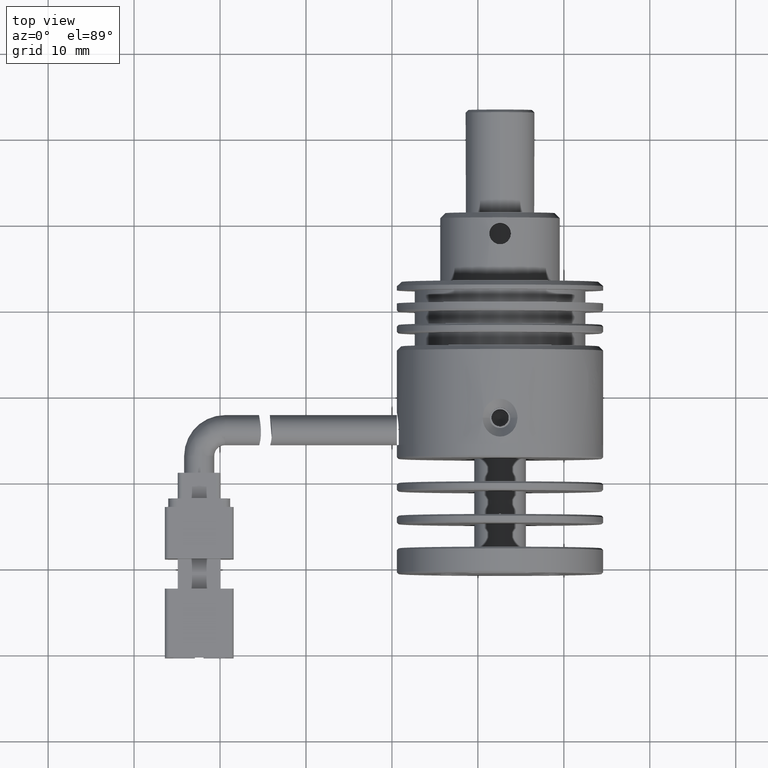
[diagram: clean part render]
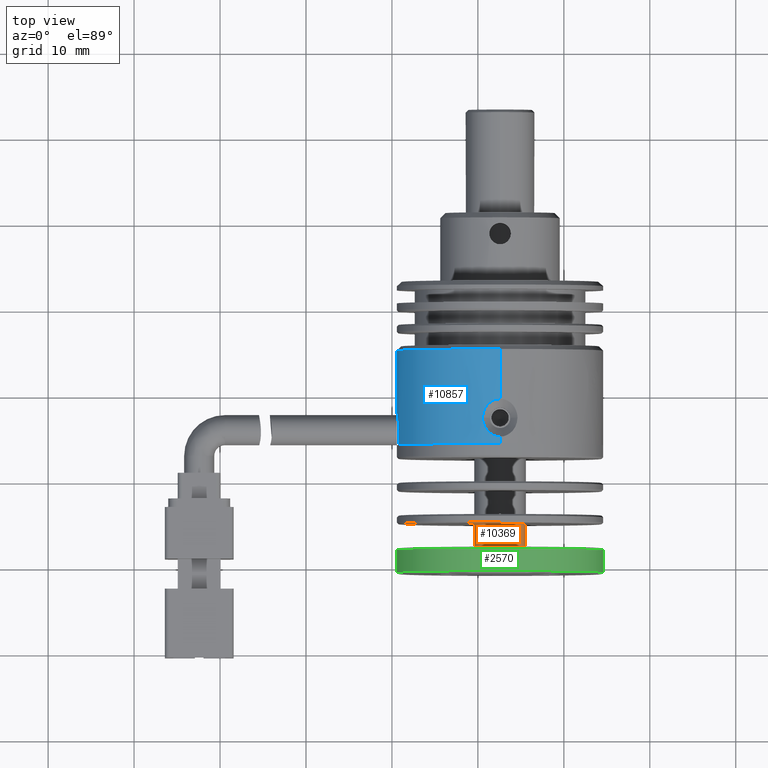
[diagram: same view with three faces highlighted in distinct colors, each labeled with its STEP entity id]
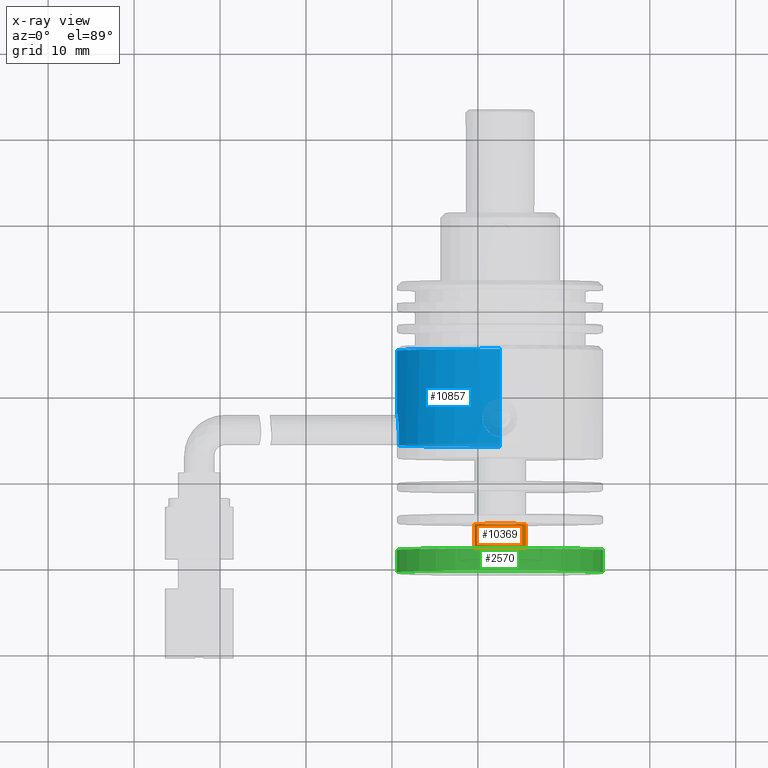
[diagram: x-ray of the same camera — body ghosted, the three highlighted faces saturated]
A machine part, top view with three faces highlighted in distinct colors.
The next image is the same camera in x-ray (body ghosted, the three faces saturated) — at least one of them is partly hidden behind the body in this view.
Their STEP definitions:

[orange] entity #10369 — the highlighted cylindrical surface (edge-blend (fillet) strip) has radius 3 mm, axis along (0, -1, 0).
#7 = AXIS2_PLACEMENT_3D ( 'NONE', #19498, #4403, #19305 ) ;
#322 = EDGE_CURVE ( 'NONE', #12363, #17632, #8459, .T. ) ;
#596 = ORIENTED_EDGE ( 'NONE', *, *, #1297, .T. ) ;
#1018 = EDGE_CURVE ( 'NONE', #16840, #17632, #2922, .T. ) ;
#1145 = DIRECTION ( 'NONE',  ( -8.260587980841940012E-17, -1.000000000000000000, 0.000000000000000000 ) ) ;
#1297 = EDGE_CURVE ( 'NONE', #8063, #12363, #7175, .T. ) ;
#2922 = LINE ( 'NONE', #7198, #17113 ) ;
#4403 = DIRECTION ( 'NONE',  ( 0.000000000000000000, 1.000000000000000000, 0.000000000000000000 ) ) ;
#5331 = ORIENTED_EDGE ( 'NONE', *, *, #322, .T. ) ;
#5690 = CIRCLE ( 'NONE', #7, 3.000000000000000000 ) ;
#5781 = CARTESIAN_POINT ( 'NONE',  ( -0.4250662123641815171, -30.71493551001259803, -9.174035921659379866 ) ) ;
#6992 = FACE_OUTER_BOUND ( 'NONE', #12270, .T. ) ;
#7081 = DIRECTION ( 'NONE',  ( -8.260587980841940012E-17, -1.000000000000000000, 0.000000000000000000 ) ) ;
#7175 = LINE ( 'NONE', #5781, #14656 ) ;
#7198 = CARTESIAN_POINT ( 'NONE',  ( 5.574933787635820259, -30.71493551001259803, -9.174035921659379866 ) ) ;
#8063 = VERTEX_POINT ( 'NONE', #8755 ) ;
#8459 = CIRCLE ( 'NONE', #13851, 3.000000000000000000 ) ;
#8755 = CARTESIAN_POINT ( 'NONE',  ( -0.4250662123641810175, -24.91493551001259732, -9.174035921659379866 ) ) ;
#9761 = CYLINDRICAL_SURFACE ( 'NONE', #12819, 3.000000000000000000 ) ;
#10057 = DIRECTION ( 'NONE',  ( -1.000000000000000000, 0.000000000000000000, 0.000000000000000000 ) ) ;
#10369 = ADVANCED_FACE ( 'NONE', ( #6992 ), #9761, .T. ) ;
#10632 = CARTESIAN_POINT ( 'NONE',  ( -0.4250662123641810175, -27.71493551001259803, -9.174035921659379866 ) ) ;
#10896 = DIRECTION ( 'NONE',  ( -1.000000000000000000, 0.000000000000000000, 0.000000000000000000 ) ) ;
#11354 = EDGE_CURVE ( 'NONE', #8063, #16840, #5690, .T. ) ;
#12270 = EDGE_LOOP ( 'NONE', ( #12853, #16775, #596, #5331 ) ) ;
#12328 = CARTESIAN_POINT ( 'NONE',  ( 5.574933787635820259, -27.71493551001259803, -9.174035921659379866 ) ) ;
#12363 = VERTEX_POINT ( 'NONE', #10632 ) ;
#12370 = DIRECTION ( 'NONE',  ( 0.000000000000000000, 1.000000000000000000, 0.000000000000000000 ) ) ;
#12819 = AXIS2_PLACEMENT_3D ( 'NONE', #17626, #19216, #10057 ) ;
#12853 = ORIENTED_EDGE ( 'NONE', *, *, #1018, .F. ) ;
#13851 = AXIS2_PLACEMENT_3D ( 'NONE', #15781, #12370, #10896 ) ;
#14656 = VECTOR ( 'NONE', #7081, 1000.000000000000000 ) ;
#15781 = CARTESIAN_POINT ( 'NONE',  ( 2.574933787635819815, -27.71493551001259803, -9.174035921659379866 ) ) ;
#16775 = ORIENTED_EDGE ( 'NONE', *, *, #11354, .F. ) ;
#16840 = VERTEX_POINT ( 'NONE', #17884 ) ;
#17113 = VECTOR ( 'NONE', #1145, 1000.000000000000000 ) ;
#17626 = CARTESIAN_POINT ( 'NONE',  ( 2.574933787635819815, -30.71493551001259803, -9.174035921659379866 ) ) ;
#17632 = VERTEX_POINT ( 'NONE', #12328 ) ;
#17884 = CARTESIAN_POINT ( 'NONE',  ( 5.574933787635820259, -24.91493551001259732, -9.174035921659379866 ) ) ;
#19216 = DIRECTION ( 'NONE',  ( 0.000000000000000000, -1.000000000000000000, 0.000000000000000000 ) ) ;
#19305 = DIRECTION ( 'NONE',  ( -1.000000000000000000, 0.000000000000000000, 0.000000000000000000 ) ) ;
#19498 = CARTESIAN_POINT ( 'NONE',  ( 2.574933787635819815, -24.91493551001259732, -9.174035921659379866 ) ) ;

[blue] entity #10857 — the highlighted cylindrical surface (partial cylindrical patch) has radius 12 mm, axis along (0, -1, 0).
#152 = DIRECTION ( 'NONE',  ( 0.000000000000000000, -1.000000000000000000, 0.000000000000000000 ) ) ;
#250 = CARTESIAN_POINT ( 'NONE',  ( -7.955894272396198730, -14.89878694417706484, -14.92905361945406462 ) ) ;
#328 = EDGE_CURVE ( 'NONE', #1211, #1382, #16970, .T. ) ;
#333 = CARTESIAN_POINT ( 'NONE',  ( -9.425060759568792079, -11.91496925578588240, -9.466087723692901079 ) ) ;
#348 = CARTESIAN_POINT ( 'NONE',  ( 2.574933787635819815, -15.71493551001260158, -9.174035921659379866 ) ) ;
#373 = B_SPLINE_CURVE_WITH_KNOTS ( 'NONE', 3,
 ( #18196, #16191, #1521, #1215, #19297, #7461, #7169, #13499, #5970, #12013, #14704, #10229, #16298, #7263, #2694, #1312, #8730, #19388, #19488, #16402, #11918, #4490, #11816, #17891, #4285, #14896, #7365, #16617 ),
 .UNSPECIFIED., .F., .F.,
 ( 4, 2, 2, 2, 2, 2, 2, 2, 2, 2, 2, 2, 2, 4 ),
 ( 0.000000000000000000, 0.06250000000000083267, 0.1250000000000016653, 0.2500000000000028866, 0.2812500000000033307, 0.3125000000000037748, 0.3750000000000029976, 0.4375000000000022204, 0.5000000000000021094, 0.6250000000000018874, 0.7500000000000015543, 0.8125000000000013323, 0.8750000000000012212, 1.000000000000000000 ),
 .UNSPECIFIED. ) ;
#392 = ORIENTED_EDGE ( 'NONE', *, *, #8781, .T. ) ;
#437 = CARTESIAN_POINT ( 'NONE',  ( -8.594861046436205854, -13.79316622266274805, -13.56099827411221703 ) ) ;
#610 = LINE ( 'NONE', #9424, #19211 ) ;
#728 = DIRECTION ( 'NONE',  ( 0.000000000000000000, -1.000000000000000000, 0.000000000000000000 ) ) ;
#825 = CARTESIAN_POINT ( 'NONE',  ( -9.213492510803954261, -13.91929407652016160, -6.930599849896031728 ) ) ;
#848 = CARTESIAN_POINT ( 'NONE',  ( 2.096022388241594037, -14.85369483475732899, 2.816593880538836636 ) ) ;
#856 = ORIENTED_EDGE ( 'NONE', *, *, #6605, .T. ) ;
#1211 = VERTEX_POINT ( 'NONE', #12824 ) ;
#1215 = CARTESIAN_POINT ( 'NONE',  ( -6.693093116265878884, -12.16550311873377233, -16.79665169080799103 ) ) ;
#1312 = CARTESIAN_POINT ( 'NONE',  ( -7.674471767945457934, -10.53108407583808059, -15.41649169556206900 ) ) ;
#1382 = VERTEX_POINT ( 'NONE', #8531 ) ;
#1521 = CARTESIAN_POINT ( 'NONE',  ( -6.662057355899383637, -12.43657835257956989, -16.83423098900399495 ) ) ;
#1780 = ORIENTED_EDGE ( 'NONE', *, *, #10016, .T. ) ;
#1834 = CARTESIAN_POINT ( 'NONE',  ( -9.308188142008770427, -12.62674720150389795, -10.84815353852922826 ) ) ;
#1924 = CARTESIAN_POINT ( 'NONE',  ( -8.453182517590271061, -14.28828603164582667, -13.90508213202092058 ) ) ;
#2019 = CARTESIAN_POINT ( 'NONE',  ( -8.302962392191373553, -14.60143809722399943, -14.24196620499715138 ) ) ;
#2080 = DIRECTION ( 'NONE',  ( 0.000000000000000000, 0.000000000000000000, -1.000000000000000000 ) ) ;
#2112 = CARTESIAN_POINT ( 'NONE',  ( -9.256237866753636467, -13.09297815067737503, -7.167323612594349136 ) ) ;
#2114 = CARTESIAN_POINT ( 'NONE',  ( -6.654267252349984396, -12.99654219394673227, -16.84357620566042968 ) ) ;
#2181 = DIRECTION ( 'NONE',  ( 0.000000000000000000, -1.000000000000000000, 0.000000000000000000 ) ) ;
#2255 = CARTESIAN_POINT ( 'NONE',  ( 2.026255711910619706, -10.59609063980850330, 2.813590590170488515 ) ) ;
#2311 = VERTEX_POINT ( 'NONE', #15430 ) ;
#2617 = CARTESIAN_POINT ( 'NONE',  ( 1.472062192542792802, -14.56077258826209864, 2.775304383431618671 ) ) ;
#2694 = CARTESIAN_POINT ( 'NONE',  ( -7.530075066096340919, -10.59359177348320991, -15.64762568298237788 ) ) ;
#3298 = CARTESIAN_POINT ( 'NONE',  ( 2.574933787635819815, -4.714935510012609576, -9.174035921659379866 ) ) ;
#3302 = CARTESIAN_POINT ( 'NONE',  ( -9.216389900145653513, -13.77719336299539243, -11.40240203098484351 ) ) ;
#3303 = CARTESIAN_POINT ( 'NONE',  ( -8.543709394251106204, -14.02794512524190651, -13.69179350397823569 ) ) ;
#3349 = CARTESIAN_POINT ( 'NONE',  ( 2.574933787635819815, -38.96480397725189704, 2.825964078340615249 ) ) ;
#3405 = VECTOR ( 'NONE', #5006, 1000.000000000000000 ) ;
#3408 = CARTESIAN_POINT ( 'NONE',  ( -6.685817892213274938, -13.26832100679356330, -16.80607822436601140 ) ) ;
#3601 = CARTESIAN_POINT ( 'NONE',  ( -6.954529825999696158, -14.13597040033991981, -16.46772447302986109 ) ) ;
#3654 = CARTESIAN_POINT ( 'NONE',  ( 2.434959630399879060, -10.51493550999719595, 2.825964078340619690 ) ) ;
#3661 = VERTEX_POINT ( 'NONE', #6241 ) ;
#3689 = CARTESIAN_POINT ( 'NONE',  ( -9.376115538596648591, -12.17900215437839506, -8.057217805530338950 ) ) ;
#3829 = LINE ( 'NONE', #9885, #9729 ) ;
#3941 = CARTESIAN_POINT ( 'NONE',  ( 0.6430762808865218005, -12.03373431288128081, 2.669543458704266126 ) ) ;
#4005 = CARTESIAN_POINT ( 'NONE',  ( 2.029562617309307981, -14.83480792122626291, 2.813743795756896038 ) ) ;
#4010 = VERTEX_POINT ( 'NONE', #8695 ) ;
#4036 = CARTESIAN_POINT ( 'NONE',  ( 0.9286518118746019956, -11.40107229499576214, 2.713949923898268946 ) ) ;
#4080 = CARTESIAN_POINT ( 'NONE',  ( -9.422410818888788953, -11.92806868603710235, -8.884990377563864783 ) ) ;
#4224 = CARTESIAN_POINT ( 'NONE',  ( -9.213484501332771970, -14.06493551001259945, -6.930557763907279956 ) ) ;
#4285 = CARTESIAN_POINT ( 'NONE',  ( -8.612399467989444446, -11.76862252416017718, -13.51523074722599027 ) ) ;
#4490 = CARTESIAN_POINT ( 'NONE',  ( -8.506317591973171943, -11.29390061973146331, -13.77994921979212073 ) ) ;
#4736 = ORIENTED_EDGE ( 'NONE', *, *, #18639, .T. ) ;
#4883 = B_SPLINE_CURVE_WITH_KNOTS ( 'NONE', 3,
 ( #9240, #6288, #3302, #13902, #6576, #12618, #8041, #17213, #6479, #9635, #1834, #7865, #12330, #16922, #17016, #9340, #333, #15699, #4080, #11420, #16110, #3689, #9818, #5482, #6675, #16008, #2112, #14306, #11229, #11526, #825, #6966 ),
 .UNSPECIFIED., .F., .F.,
 ( 4, 2, 2, 2, 2, 2, 2, 2, 2, 2, 2, 2, 2, 2, 2, 4 ),
 ( 0.000000000000000000, 0.06250000000000045797, 0.09375000000000033307, 0.1250000000000002220, 0.1874999999999999167, 0.2499999999999996392, 0.3124999999999993339, 0.3749999999999990563, 0.4999999999999987788, 0.5624999999999985567, 0.6249999999999983347, 0.7499999999999990008, 0.8124999999999993339, 0.8749999999999995559, 0.9374999999999997780, 1.000000000000000000 ),
 .UNSPECIFIED. ) ;
#4935 = ORIENTED_EDGE ( 'NONE', *, *, #6337, .T. ) ;
#5001 = CARTESIAN_POINT ( 'NONE',  ( -8.660458563684807487, -13.26436790134293453, -13.38907477882363217 ) ) ;
#5006 = DIRECTION ( 'NONE',  ( 0.000000000000000000, -1.000000000000000000, 0.000000000000000000 ) ) ;
#5088 = CARTESIAN_POINT ( 'NONE',  ( -8.434011058247628867, -14.33769209021656366, -13.94956596884821387 ) ) ;
#5147 = CARTESIAN_POINT ( 'NONE',  ( 1.832271277840390677, -10.66717542570919619, 2.803126939185562883 ) ) ;
#5255 = CARTESIAN_POINT ( 'NONE',  ( 1.896241302772099679, -10.64108618937641815, 2.806932884280202156 ) ) ;
#5408 = CARTESIAN_POINT ( 'NONE',  ( 1.832890731332017520, -14.76291463980479968, 2.803160245685113239 ) ) ;
#5425 = ORIENTED_EDGE ( 'NONE', *, *, #8380, .T. ) ;
#5438 = DIRECTION ( 'NONE',  ( 0.000000000000000000, 1.000000000000000000, 0.000000000000000000 ) ) ;
#5482 = CARTESIAN_POINT ( 'NONE',  ( -9.308164599573723663, -12.62690814907359993, -7.499749364523114359 ) ) ;
#5497 = AXIS2_PLACEMENT_3D ( 'NONE', #3298, #728, #6781 ) ;
#5631 = DIRECTION ( 'NONE',  ( 0.000000000000000000, -1.000000000000000000, 0.000000000000000000 ) ) ;
#5660 = EDGE_LOOP ( 'NONE', ( #17487, #14894, #4935, #392, #5425, #1780, #4736, #14742, #15478, #19420, #17489, #18950 ) ) ;
#5967 = VERTEX_POINT ( 'NONE', #16418 ) ;
#5970 = CARTESIAN_POINT ( 'NONE',  ( -7.065268972709117357, -11.09217892979781084, -16.32029680345939227 ) ) ;
#6031 = VERTEX_POINT ( 'NONE', #19367 ) ;
#6241 = CARTESIAN_POINT ( 'NONE',  ( -9.213484501332771970, -14.06493551001259945, -11.41751407941150021 ) ) ;
#6288 = CARTESIAN_POINT ( 'NONE',  ( -9.213492324046612225, -13.92039798231772707, -11.41747297474433509 ) ) ;
#6297 = AXIS2_PLACEMENT_3D ( 'NONE', #7127, #5631, #11673 ) ;
#6337 = EDGE_CURVE ( 'NONE', #4010, #11216, #6713, .T. ) ;
#6476 = LINE ( 'NONE', #13719, #19144 ) ;
#6479 = CARTESIAN_POINT ( 'NONE',  ( -9.268295494638719489, -12.96850231522942032, -11.10925643756528025 ) ) ;
#6481 = CARTESIAN_POINT ( 'NONE',  ( -8.252952824295109124, -14.67281473078618070, -14.34827459290532126 ) ) ;
#6576 = CARTESIAN_POINT ( 'NONE',  ( -9.228205222392402263, -13.49595041248288396, -11.33884961509288480 ) ) ;
#6579 = CARTESIAN_POINT ( 'NONE',  ( -8.681695344521912716, -12.85532774269461598, -13.33195614480917079 ) ) ;
#6605 = EDGE_CURVE ( 'NONE', #10858, #6031, #6668, .T. ) ;
#6668 = B_SPLINE_CURVE_WITH_KNOTS ( 'NONE', 3,
 ( #18598, #6579, #9243, #5001, #18694, #437, #3303, #1924, #5088, #10849, #9442, #2019, #6481, #11048, #8045, #250, #12713, #11137, #17218, #10946, #7774, #3601, #17112, #15703, #17017, #3408, #2114, #8147 ),
 .UNSPECIFIED., .F., .F.,
 ( 4, 2, 2, 2, 2, 2, 2, 2, 2, 2, 2, 2, 2, 4 ),
 ( 0.000000000000000000, 0.06250000000000051348, 0.1250000000000010270, 0.2500000000000012212, 0.2812500000000013323, 0.3125000000000013878, 0.3750000000000012212, 0.4375000000000011102, 0.5000000000000008882, 0.6250000000000007772, 0.7500000000000005551, 0.8125000000000006661, 0.8750000000000007772, 1.000000000000000000 ),
 .UNSPECIFIED. ) ;
#6675 = CARTESIAN_POINT ( 'NONE',  ( -9.294545518037551801, -12.73263607737968606, -7.406908472809957900 ) ) ;
#6713 = CIRCLE ( 'NONE', #18448, 12.00000000000000178 ) ;
#6781 = DIRECTION ( 'NONE',  ( 0.000000000000000000, 0.000000000000000000, -1.000000000000000000 ) ) ;
#6895 = CARTESIAN_POINT ( 'NONE',  ( 1.648504180264004138, -14.67214926115701168, 2.790295710540666718 ) ) ;
#6909 = VERTEX_POINT ( 'NONE', #14776 ) ;
#6966 = CARTESIAN_POINT ( 'NONE',  ( -9.213484501332771970, -14.06493551001259945, -6.930557763907279956 ) ) ;
#7127 = CARTESIAN_POINT ( 'NONE',  ( 2.574933787635819815, -38.96480397725189704, -9.174035921659379866 ) ) ;
#7169 = CARTESIAN_POINT ( 'NONE',  ( -6.896880637730435915, -11.40192589481244667, -16.54418458163544869 ) ) ;
#7263 = CARTESIAN_POINT ( 'NONE',  ( -7.460419186468075559, -10.63818894139042825, -15.75488427069399222 ) ) ;
#7365 = CARTESIAN_POINT ( 'NONE',  ( -8.681683732527016417, -12.43333097894222483, -13.33198758191794120 ) ) ;
#7461 = CARTESIAN_POINT ( 'NONE',  ( -6.809184472037298264, -11.63670479744083153, -16.65388082684023274 ) ) ;
#7774 = CARTESIAN_POINT ( 'NONE',  ( -7.121615167523180467, -14.44668694536710873, -16.24589679077926974 ) ) ;
#7820 = EDGE_CURVE ( 'NONE', #5967, #2311, #15422, .T. ) ;
#7865 = CARTESIAN_POINT ( 'NONE',  ( -9.335931312383490166, -12.42948708778289735, -10.63778083080720371 ) ) ;
#8006 = EDGE_LOOP ( 'NONE', ( #856, #15195 ) ) ;
#8041 = CARTESIAN_POINT ( 'NONE',  ( -9.240971289631117358, -13.29027812670574349, -11.26813423856585139 ) ) ;
#8045 = CARTESIAN_POINT ( 'NONE',  ( -8.083863826174100708, -14.83627924655192309, -14.68843541387316520 ) ) ;
#8147 = CARTESIAN_POINT ( 'NONE',  ( -6.654224905934100320, -12.71493551001259981, -16.84362716297745166 ) ) ;
#8210 = CARTESIAN_POINT ( 'NONE',  ( -9.213484501332771970, -15.71493551001260158, -6.930557763907279956 ) ) ;
#8265 = EDGE_CURVE ( 'NONE', #15969, #17079, #17325, .T. ) ;
#8380 = EDGE_CURVE ( 'NONE', #13061, #6909, #18959, .T. ) ;
#8487 = CARTESIAN_POINT ( 'NONE',  ( 1.358851824585484147, -10.95465887695283058, 2.764317752106358661 ) ) ;
#8489 = CYLINDRICAL_SURFACE ( 'NONE', #6297, 12.00000000000000178 ) ;
#8531 = CARTESIAN_POINT ( 'NONE',  ( 2.574933787635819815, -15.71493551001260158, 2.825964078340615249 ) ) ;
#8540 = CARTESIAN_POINT ( 'NONE',  ( 1.708977548617782505, -14.70461354540279508, 2.794839368883422548 ) ) ;
#8649 = CARTESIAN_POINT ( 'NONE',  ( 1.306898770458118975, -14.43574271805684539, 2.759292412202561717 ) ) ;
#8695 = CARTESIAN_POINT ( 'NONE',  ( -9.425066212364189511, -4.714935510012609576, -9.174035921659379866 ) ) ;
#8730 = CARTESIAN_POINT ( 'NONE',  ( -7.745591693349876294, -10.51528452145235804, -15.29825444464140460 ) ) ;
#8781 = EDGE_CURVE ( 'NONE', #11216, #13061, #610, .T. ) ;
#9145 = CARTESIAN_POINT ( 'NONE',  ( 0.8008673242389388047, -13.78789110568836129, 2.694313502956070305 ) ) ;
#9240 = CARTESIAN_POINT ( 'NONE',  ( -9.213484501332771970, -14.06493551001259945, -11.41751407941150021 ) ) ;
#9243 = CARTESIAN_POINT ( 'NONE',  ( -8.677485310395711693, -12.99329266749708367, -13.34340737282247780 ) ) ;
#9340 = CARTESIAN_POINT ( 'NONE',  ( -9.414418383735169371, -11.96763057344464798, -9.747608514905470756 ) ) ;
#9346 = B_SPLINE_CURVE_WITH_KNOTS ( 'NONE', 3,
 ( #10144, #16212, #11544, #848, #4005, #14629, #5408, #8540, #6895, #13121, #2617, #8649, #11444, #17533, #18820, #9145, #13214, #12130, #11839, #16319 ),
 .UNSPECIFIED., .F., .F.,
 ( 4, 2, 2, 2, 2, 2, 2, 2, 2, 4 ),
 ( 0.000000000000000000, 0.1250000000000009437, 0.1875000000000010270, 0.2500000000000012768, 0.3125000000000015543, 0.3750000000000018319, 0.5000000000000014433, 0.6250000000000009992, 0.7500000000000006661, 1.000000000000000000 ),
 .UNSPECIFIED. ) ;
#9424 = CARTESIAN_POINT ( 'NONE',  ( 2.574933787635819815, -38.96480397725189704, -21.17403592165939941 ) ) ;
#9442 = CARTESIAN_POINT ( 'NONE',  ( -8.372482333304628099, -14.47430314968180021, -14.08903499988319474 ) ) ;
#9635 = CARTESIAN_POINT ( 'NONE',  ( -9.294405476464245197, -12.73422542883227493, -10.94206977636937950 ) ) ;
#9693 = CARTESIAN_POINT ( 'NONE',  ( 2.574933787635819815, -10.51493550999719773, 2.825964078340615249 ) ) ;
#9698 = DIRECTION ( 'NONE',  ( 0.000000000000000000, 1.000000000000000000, 0.000000000000000000 ) ) ;
#9729 = VECTOR ( 'NONE', #5438, 1000.000000000000000 ) ;
#9818 = CARTESIAN_POINT ( 'NONE',  ( -9.349794472840763149, -12.33093148925439309, -7.815394344263657089 ) ) ;
#9885 = CARTESIAN_POINT ( 'NONE',  ( -9.213484501332771970, -38.96480397725189704, -11.41751407941150021 ) ) ;
#10016 = EDGE_CURVE ( 'NONE', #6909, #3661, #3829, .T. ) ;
#10081 = CARTESIAN_POINT ( 'NONE',  ( 1.158938285418594116, -11.14067480796142817, 2.742218102810475511 ) ) ;
#10144 = CARTESIAN_POINT ( 'NONE',  ( 2.574933787635819815, -14.91493551002800011, 2.825964078340615249 ) ) ;
#10229 = CARTESIAN_POINT ( 'NONE',  ( -7.252970672255964146, -10.82843292281376080, -16.06060521145164799 ) ) ;
#10245 = CARTESIAN_POINT ( 'NONE',  ( 2.574933787635819815, -15.71493551001260158, -21.17403592165939941 ) ) ;
#10383 = AXIS2_PLACEMENT_3D ( 'NONE', #18751, #9698, #2080 ) ;
#10849 = CARTESIAN_POINT ( 'NONE',  ( -8.393398875167196849, -14.43117996193794994, -14.04211895807070398 ) ) ;
#10857 = ADVANCED_FACE ( 'NONE', ( #19345, #19147 ), #8489, .T. ) ;
#10858 = VERTEX_POINT ( 'NONE', #17747 ) ;
#10946 = CARTESIAN_POINT ( 'NONE',  ( -7.254627203159381033, -14.61855815121868218, -16.06189461864926571 ) ) ;
#11048 = CARTESIAN_POINT ( 'NONE',  ( -8.141924548128638861, -14.79168207862731244, -14.57448235866862163 ) ) ;
#11137 = CARTESIAN_POINT ( 'NONE',  ( -7.680814770425778981, -14.91561685721090136, -15.41076714862545849 ) ) ;
#11216 = VERTEX_POINT ( 'NONE', #17419 ) ;
#11229 = CARTESIAN_POINT ( 'NONE',  ( -9.227773973281989228, -13.49065424144919234, -7.006768086228773562 ) ) ;
#11285 = CARTESIAN_POINT ( 'NONE',  ( 2.090855659489178731, -10.57751412985032857, 2.816392297456434601 ) ) ;
#11386 = CARTESIAN_POINT ( 'NONE',  ( 0.7896083283397475894, -11.63596441453408481, 2.692825367907607959 ) ) ;
#11420 = CARTESIAN_POINT ( 'NONE',  ( -9.412325796991517279, -11.98070189885332404, -8.603568933108180161 ) ) ;
#11444 = CARTESIAN_POINT ( 'NONE',  ( 1.205356457666356684, -14.34154588311136180, 2.747909220469828107 ) ) ;
#11526 = CARTESIAN_POINT ( 'NONE',  ( -9.216422798576456188, -13.77530953610899900, -6.945837048822846249 ) ) ;
#11544 = CARTESIAN_POINT ( 'NONE',  ( 2.298468435450190306, -14.89942864342272699, 2.823538984811339692 ) ) ;
#11673 = DIRECTION ( 'NONE',  ( 0.000000000000000000, 0.000000000000000000, -1.000000000000000000 ) ) ;
#11816 = CARTESIAN_POINT ( 'NONE',  ( -8.537339679437257800, -11.40479259671446144, -13.70420550793218695 ) ) ;
#11839 = CARTESIAN_POINT ( 'NONE',  ( 0.5475158761821232734, -12.99643999536453087, 2.653456484445970709 ) ) ;
#11918 = CARTESIAN_POINT ( 'NONE',  ( -8.397751854604811328, -10.98318407456481260, -14.03556321136731633 ) ) ;
#12013 = CARTESIAN_POINT ( 'NONE',  ( -7.125116121031794592, -10.99869105807635883, -16.23884912659725188 ) ) ;
#12130 = CARTESIAN_POINT ( 'NONE',  ( 0.5957333174540478948, -13.26813156739758170, 2.662025266704684423 ) ) ;
#12330 = CARTESIAN_POINT ( 'NONE',  ( -9.349418402749773094, -12.34223892728565986, -10.52480321934405971 ) ) ;
#12618 = CARTESIAN_POINT ( 'NONE',  ( -9.236260391948539095, -13.35893750258693302, -11.29446061248897770 ) ) ;
#12668 = CARTESIAN_POINT ( 'NONE',  ( 1.207111628516821078, -11.09126299232796775, 2.747860863761718342 ) ) ;
#12713 = CARTESIAN_POINT ( 'NONE',  ( -7.889057772064894003, -14.91458649856309826, -15.04976390714435652 ) ) ;
#12769 = AXIS2_PLACEMENT_3D ( 'NONE', #348, #18817, #17128 ) ;
#12824 = CARTESIAN_POINT ( 'NONE',  ( 2.574933787635819815, -14.91493551002800011, 2.825964078340615249 ) ) ;
#12916 = EDGE_CURVE ( 'NONE', #17079, #1382, #15330, .T. ) ;
#13061 = VERTEX_POINT ( 'NONE', #10245 ) ;
#13121 = CARTESIAN_POINT ( 'NONE',  ( 1.530527927023326074, -14.60059321857586134, 2.780574888442135961 ) ) ;
#13214 = CARTESIAN_POINT ( 'NONE',  ( 0.7407237390985277337, -13.66094955546883050, 2.685056296415801569 ) ) ;
#13267 = EDGE_CURVE ( 'NONE', #19494, #4010, #17247, .T. ) ;
#13499 = CARTESIAN_POINT ( 'NONE',  ( -7.036330569629583032, -11.14158498837219291, -16.35914169269224061 ) ) ;
#13719 = CARTESIAN_POINT ( 'NONE',  ( 2.574933787635819815, -38.96480397725189704, 2.825964078340615249 ) ) ;
#13902 = CARTESIAN_POINT ( 'NONE',  ( -9.224769353864248345, -13.56548788610523104, -11.35743653292616173 ) ) ;
#14215 = CARTESIAN_POINT ( 'NONE',  ( -9.213484501332771970, -38.96480397725189704, -6.930557763907279956 ) ) ;
#14306 = CARTESIAN_POINT ( 'NONE',  ( -9.235825979778722328, -13.35674619368531779, -7.050484480463826920 ) ) ;
#14562 = CARTESIAN_POINT ( 'NONE',  ( 1.526271983177290847, -10.82755075271818157, 2.780581744454358795 ) ) ;
#14629 = CARTESIAN_POINT ( 'NONE',  ( 1.898701680233053413, -14.78974947287892228, 2.807074310854048793 ) ) ;
#14663 = CARTESIAN_POINT ( 'NONE',  ( 0.6076549714631218624, -12.16511051637281149, 2.663633174447706864 ) ) ;
#14704 = CARTESIAN_POINT ( 'NONE',  ( -7.155288334153795837, -10.95556787033696544, -16.19727684908054144 ) ) ;
#14742 = ORIENTED_EDGE ( 'NONE', *, *, #8265, .T. ) ;
#14776 = CARTESIAN_POINT ( 'NONE',  ( -9.213484501332771970, -15.71493551001260158, -11.41751407941150021 ) ) ;
#14894 = ORIENTED_EDGE ( 'NONE', *, *, #13267, .T. ) ;
#14896 = CARTESIAN_POINT ( 'NONE',  ( -8.664984857294854237, -12.16155216609532985, -13.37806023166532476 ) ) ;
#15195 = ORIENTED_EDGE ( 'NONE', *, *, #18815, .T. ) ;
#15330 = CIRCLE ( 'NONE', #12769, 12.00000000000000178 ) ;
#15422 = B_SPLINE_CURVE_WITH_KNOTS ( 'NONE', 3,
 ( #15765, #18847, #19146, #14663, #3941, #11386, #4036, #10081, #12668, #17565, #8487, #14562, #16155, #5147, #5255, #2255, #11285, #17273, #3654, #9693 ),
 .UNSPECIFIED., .F., .F.,
 ( 4, 2, 2, 2, 2, 2, 2, 2, 2, 4 ),
 ( 0.000000000000000000, 0.1250000000000003331, 0.2500000000000006661, 0.5000000000000027756, 0.5625000000000026645, 0.6250000000000025535, 0.7500000000000013323, 0.8125000000000007772, 0.8750000000000005551, 1.000000000000000000 ),
 .UNSPECIFIED. ) ;
#15430 = CARTESIAN_POINT ( 'NONE',  ( 2.574933787635819815, -10.51493550999719773, 2.825964078340615249 ) ) ;
#15478 = ORIENTED_EDGE ( 'NONE', *, *, #12916, .T. ) ;
#15532 = DIRECTION ( 'NONE',  ( 0.000000000000000000, 0.000000000000000000, -1.000000000000000000 ) ) ;
#15632 = CARTESIAN_POINT ( 'NONE',  ( 2.574933787635819815, -4.714935510012609576, 2.825964078340615249 ) ) ;
#15699 = CARTESIAN_POINT ( 'NONE',  ( -9.425068935622130439, -11.91491879325488235, -9.028346221252300907 ) ) ;
#15703 = CARTESIAN_POINT ( 'NONE',  ( -6.816559875640418653, -13.78865487889265573, -16.64430397977146114 ) ) ;
#15734 = CARTESIAN_POINT ( 'NONE',  ( 2.574933787635819815, -4.714935510012609576, -9.174035921659379866 ) ) ;
#15765 = CARTESIAN_POINT ( 'NONE',  ( 0.5474522827837989825, -12.71493551001259981, 2.653445583186989865 ) ) ;
#15833 = DIRECTION ( 'NONE',  ( 0.000000000000000000, -1.000000000000000000, 0.000000000000000000 ) ) ;
#15969 = VERTEX_POINT ( 'NONE', #4224 ) ;
#16008 = CARTESIAN_POINT ( 'NONE',  ( -9.268220310959691233, -12.96870335047421285, -7.238324319894849701 ) ) ;
#16110 = CARTESIAN_POINT ( 'NONE',  ( -9.404977513313401261, -12.01975180163159784, -8.466617447891463755 ) ) ;
#16155 = CARTESIAN_POINT ( 'NONE',  ( 1.643488745230361925, -10.75621751935399750, 2.790424840431592113 ) ) ;
#16191 = CARTESIAN_POINT ( 'NONE',  ( -6.654245318598855263, -12.57454327736487620, -16.84360259951422378 ) ) ;
#16212 = CARTESIAN_POINT ( 'NONE',  ( 2.436411609036798431, -14.91493551002799833, 2.825964078340620578 ) ) ;
#16298 = CARTESIAN_POINT ( 'NONE',  ( -7.320031652877666772, -10.75705628924656310, -15.96414146125825084 ) ) ;
#16319 = CARTESIAN_POINT ( 'NONE',  ( 0.5474522827837989825, -12.71493551001259981, 2.653445583186989865 ) ) ;
#16402 = CARTESIAN_POINT ( 'NONE',  ( -8.304907317093805474, -10.81131286889083043, -14.24275609911711804 ) ) ;
#16418 = CARTESIAN_POINT ( 'NONE',  ( 0.5474522827837989825, -12.71493551001259981, 2.653445583186989865 ) ) ;
#16617 = CARTESIAN_POINT ( 'NONE',  ( -8.681706410773180949, -12.71493551001259981, -13.33192618518999950 ) ) ;
#16922 = CARTESIAN_POINT ( 'NONE',  ( -9.374312764544116661, -12.19050639901771227, -10.28320420828860726 ) ) ;
#16970 = LINE ( 'NONE', #3349, #18945 ) ;
#17016 = CARTESIAN_POINT ( 'NONE',  ( -9.385802963159576962, -12.12556405303699592, -10.15340517295977207 ) ) ;
#17017 = CARTESIAN_POINT ( 'NONE',  ( -6.778317588499171542, -13.66124741943286836, -16.69195362148569828 ) ) ;
#17079 = VERTEX_POINT ( 'NONE', #8210 ) ;
#17112 = CARTESIAN_POINT ( 'NONE',  ( -6.904444891094548176, -14.02507842338017241, -16.53246224476948356 ) ) ;
#17128 = DIRECTION ( 'NONE',  ( 9.035018104045868969E-16, 0.000000000000000000, -1.000000000000000000 ) ) ;
#17213 = CARTESIAN_POINT ( 'NONE',  ( -9.256117075792042570, -13.09449669273079664, -11.18144163311762540 ) ) ;
#17218 = CARTESIAN_POINT ( 'NONE',  ( -7.533757484643204272, -14.85262394592280977, -15.64529758096599288 ) ) ;
#17247 = CIRCLE ( 'NONE', #5497, 12.00000000000000178 ) ;
#17264 = DIRECTION ( 'NONE',  ( 0.000000000000000000, -1.000000000000000000, 0.000000000000000000 ) ) ;
#17273 = CARTESIAN_POINT ( 'NONE',  ( 2.296413131438899136, -10.53058016496047955, 2.823515007248853959 ) ) ;
#17325 = LINE ( 'NONE', #14215, #3405 ) ;
#17419 = CARTESIAN_POINT ( 'NONE',  ( 2.574933787635819815, -4.714935510012609576, -21.17403592165939941 ) ) ;
#17487 = ORIENTED_EDGE ( 'NONE', *, *, #17714, .F. ) ;
#17489 = ORIENTED_EDGE ( 'NONE', *, *, #18513, .T. ) ;
#17533 = CARTESIAN_POINT ( 'NONE',  ( 1.022143580627742798, -14.13465155958513009, 2.725432999587664717 ) ) ;
#17565 = CARTESIAN_POINT ( 'NONE',  ( 1.307701013022321224, -10.99777472460785255, 2.758972144882612554 ) ) ;
#17714 = EDGE_CURVE ( 'NONE', #19494, #2311, #6476, .T. ) ;
#17747 = CARTESIAN_POINT ( 'NONE',  ( -8.681706410773180949, -12.71493551001259981, -13.33192618518999950 ) ) ;
#17891 = CARTESIAN_POINT ( 'NONE',  ( -8.590254955424716954, -11.64121614120201187, -13.57217398443567724 ) ) ;
#18196 = CARTESIAN_POINT ( 'NONE',  ( -6.654224905934100320, -12.71493551001259981, -16.84362716297745166 ) ) ;
#18448 = AXIS2_PLACEMENT_3D ( 'NONE', #15734, #15833, #15532 ) ;
#18513 = EDGE_CURVE ( 'NONE', #1211, #5967, #9346, .T. ) ;
#18598 = CARTESIAN_POINT ( 'NONE',  ( -8.681706410773180949, -12.71493551001259981, -13.33192618518999950 ) ) ;
#18639 = EDGE_CURVE ( 'NONE', #3661, #15969, #4883, .T. ) ;
#18694 = CARTESIAN_POINT ( 'NONE',  ( -8.647884393815443715, -13.39565870599384745, -13.42265815661534489 ) ) ;
#18751 = CARTESIAN_POINT ( 'NONE',  ( 2.574933787635819815, -15.71493551001260158, -9.174035921659379866 ) ) ;
#18815 = EDGE_CURVE ( 'NONE', #6031, #10858, #373, .T. ) ;
#18817 = DIRECTION ( 'NONE',  ( 0.000000000000000000, 1.000000000000000000, 0.000000000000000000 ) ) ;
#18820 = CARTESIAN_POINT ( 'NONE',  ( 0.9412735214945913143, -14.02392060410052821, 2.714453638253215839 ) ) ;
#18847 = CARTESIAN_POINT ( 'NONE',  ( 0.5474837469512452426, -12.57443861515469408, 2.653450976813483742 ) ) ;
#18945 = VECTOR ( 'NONE', #17264, 1000.000000000000000 ) ;
#18950 = ORIENTED_EDGE ( 'NONE', *, *, #7820, .T. ) ;
#18959 = CIRCLE ( 'NONE', #10383, 12.00000000000000178 ) ;
#19144 = VECTOR ( 'NONE', #152, 1000.000000000000000 ) ;
#19146 = CARTESIAN_POINT ( 'NONE',  ( 0.5595231203477899484, -12.43637423745516024, 2.655533614535597220 ) ) ;
#19147 = FACE_OUTER_BOUND ( 'NONE', #5660, .T. ) ;
#19211 = VECTOR ( 'NONE', #2181, 1000.000000000000000 ) ;
#19297 = CARTESIAN_POINT ( 'NONE',  ( -6.715890089661443518, -12.03421231399238067, -16.76897045135189757 ) ) ;
#19345 = FACE_BOUND ( 'NONE', #8006, .T. ) ;
#19367 = CARTESIAN_POINT ( 'NONE',  ( -6.654224905934100320, -12.71493551001259981, -16.84362716297745166 ) ) ;
#19388 = CARTESIAN_POINT ( 'NONE',  ( -7.954108170566687619, -10.51425416283376535, -14.93740909420821339 ) ) ;
#19420 = ORIENTED_EDGE ( 'NONE', *, *, #328, .F. ) ;
#19488 = CARTESIAN_POINT ( 'NONE',  ( -8.083688839938137249, -10.57724707401816566, -14.69278853293848996 ) ) ;
#19494 = VERTEX_POINT ( 'NONE', #15632 ) ;

[green] entity #2570 — the highlighted cylindrical surface (partial cylindrical patch) has radius 12 mm, axis along (0, -1, 0).
#270 = CARTESIAN_POINT ( 'NONE',  ( 14.57493378763582115, -27.91493551001260087, -9.174035921659390524 ) ) ;
#624 = FACE_OUTER_BOUND ( 'NONE', #16258, .T. ) ;
#859 = DIRECTION ( 'NONE',  ( 0.000000000000000000, 1.000000000000000000, 0.000000000000000000 ) ) ;
#923 = EDGE_CURVE ( 'NONE', #10766, #4102, #10934, .T. ) ;
#2357 = CARTESIAN_POINT ( 'NONE',  ( 14.57493378763582115, -30.51493551001259874, -9.174035921659379866 ) ) ;
#2570 = ADVANCED_FACE ( 'NONE', ( #624 ), #12614, .T. ) ;
#2610 = EDGE_CURVE ( 'NONE', #7259, #15153, #9643, .T. ) ;
#3748 = ORIENTED_EDGE ( 'NONE', *, *, #15990, .F. ) ;
#4102 = VERTEX_POINT ( 'NONE', #2357 ) ;
#4199 = VECTOR ( 'NONE', #12541, 1000.000000000000000 ) ;
#5104 = LINE ( 'NONE', #6696, #4199 ) ;
#5727 = EDGE_CURVE ( 'NONE', #7259, #10766, #5104, .T. ) ;
#6021 = ORIENTED_EDGE ( 'NONE', *, *, #5727, .T. ) ;
#6173 = AXIS2_PLACEMENT_3D ( 'NONE', #8926, #14998, #17886 ) ;
#6696 = CARTESIAN_POINT ( 'NONE',  ( -9.425066212364178853, -10.71493551001259981, -9.174035921659379866 ) ) ;
#6718 = DIRECTION ( 'NONE',  ( -1.000000000000000000, 0.000000000000000000, 0.000000000000000000 ) ) ;
#6945 = AXIS2_PLACEMENT_3D ( 'NONE', #10119, #7164, #16004 ) ;
#7164 = DIRECTION ( 'NONE',  ( 0.000000000000000000, -1.000000000000000000, 0.000000000000000000 ) ) ;
#7259 = VERTEX_POINT ( 'NONE', #7605 ) ;
#7415 = LINE ( 'NONE', #15049, #16889 ) ;
#7605 = CARTESIAN_POINT ( 'NONE',  ( -9.425066212364178853, -27.91493551001260087, -9.174035921659379866 ) ) ;
#8926 = CARTESIAN_POINT ( 'NONE',  ( 2.574933787635819815, -27.91493551001260087, -9.174035921659379866 ) ) ;
#8938 = ORIENTED_EDGE ( 'NONE', *, *, #923, .T. ) ;
#9643 = CIRCLE ( 'NONE', #6173, 12.00000000000000000 ) ;
#10091 = ORIENTED_EDGE ( 'NONE', *, *, #2610, .F. ) ;
#10119 = CARTESIAN_POINT ( 'NONE',  ( 2.574933787635819815, -10.71493551001259981, -9.174035921659379866 ) ) ;
#10277 = DIRECTION ( 'NONE',  ( 0.000000000000000000, -1.000000000000000000, 0.000000000000000000 ) ) ;
#10766 = VERTEX_POINT ( 'NONE', #15767 ) ;
#10934 = CIRCLE ( 'NONE', #13457, 12.00000000000000000 ) ;
#12541 = DIRECTION ( 'NONE',  ( 0.000000000000000000, -1.000000000000000000, 0.000000000000000000 ) ) ;
#12614 = CYLINDRICAL_SURFACE ( 'NONE', #6945, 12.00000000000000000 ) ;
#13457 = AXIS2_PLACEMENT_3D ( 'NONE', #14444, #859, #6718 ) ;
#14444 = CARTESIAN_POINT ( 'NONE',  ( 2.574933787635819815, -30.51493551001259874, -9.174035921659379866 ) ) ;
#14998 = DIRECTION ( 'NONE',  ( 0.000000000000000000, 1.000000000000000000, 0.000000000000000000 ) ) ;
#15049 = CARTESIAN_POINT ( 'NONE',  ( 14.57493378763582115, -10.71493551001259981, -9.174035921659390524 ) ) ;
#15153 = VERTEX_POINT ( 'NONE', #270 ) ;
#15767 = CARTESIAN_POINT ( 'NONE',  ( -9.425066212364178853, -30.51493551001259874, -9.174035921659390524 ) ) ;
#15990 = EDGE_CURVE ( 'NONE', #15153, #4102, #7415, .T. ) ;
#16004 = DIRECTION ( 'NONE',  ( -1.000000000000000000, 0.000000000000000000, 0.000000000000000000 ) ) ;
#16258 = EDGE_LOOP ( 'NONE', ( #3748, #10091, #6021, #8938 ) ) ;
#16889 = VECTOR ( 'NONE', #10277, 1000.000000000000000 ) ;
#17886 = DIRECTION ( 'NONE',  ( -1.000000000000000000, 0.000000000000000000, 0.000000000000000000 ) ) ;